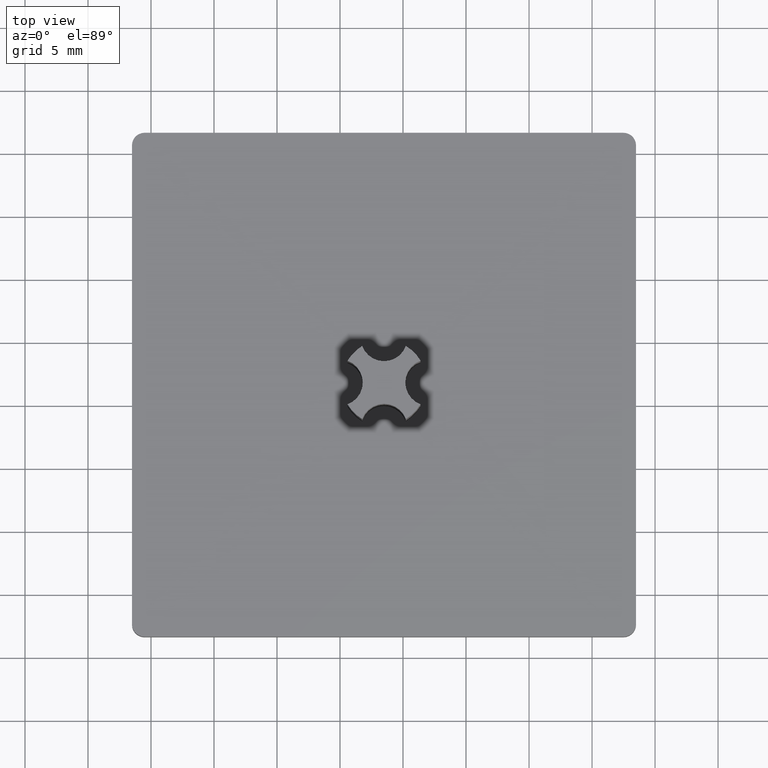
[diagram: clean part render]
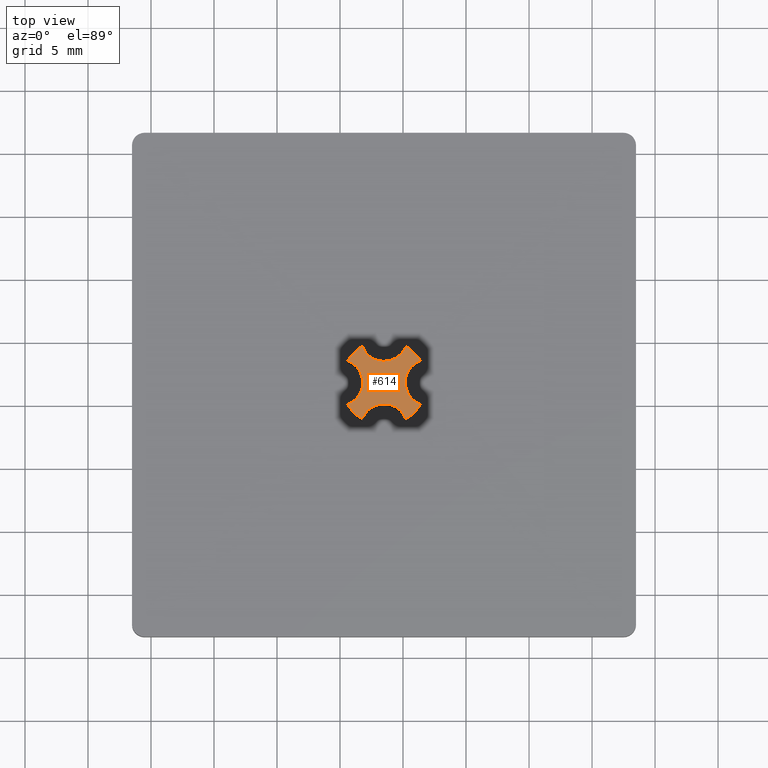
[diagram: same view with one face highlighted and labeled with its STEP entity id]
A machine part, top view. The second image highlights one B-rep face of the part: STEP entity #614.
In plain terms, the highlighted planar face has unit normal (0, 0, 1).
Its self-contained STEP definition (entity closure, byte-faithful):
#7=CARTESIAN_POINT('',(-24.822161560216632,-8.350442477875610,13.0));
#8=VERTEX_POINT('',#7);
#9=CARTESIAN_POINT('',(-23.614734513273326,-6.615622602499498,13.0));
#10=VERTEX_POINT('',#9);
#11=CARTESIAN_POINT('',(-22.972161560216630,-8.350442477875610,13.0));
#12=DIRECTION('',(0.0,0.0,-1.0));
#13=DIRECTION('',(0.0,1.0,0.0));
#14=AXIS2_PLACEMENT_3D('',#11,#12,#13);
#15=CIRCLE('',#14,1.850000000000001);
#16=EDGE_CURVE('',#8,#10,#15,.T.);
#411=CARTESIAN_POINT('',(-24.774914637897208,-5.455442477875609,13.0));
#412=VERTEX_POINT('',#411);
#419=CARTESIAN_POINT('',(-26.509734513273326,-8.350442477875610,13.0));
#420=DIRECTION('',(0.0,0.0,1.0));
#421=DIRECTION('',(0.0,1.0,0.0));
#422=AXIS2_PLACEMENT_3D('',#419,#420,#421);
#423=CIRCLE('',#422,3.374999999999998);
#424=EDGE_CURVE('',#10,#412,#423,.T.);
#436=CARTESIAN_POINT('',(-28.244554388649441,-5.455442477875613,13.0));
#437=VERTEX_POINT('',#436);
#444=CARTESIAN_POINT('',(-26.509734513273326,-4.812869524818913,13.0));
#445=DIRECTION('',(0.0,0.0,-1.0));
#446=DIRECTION('',(0.0,1.0,0.0));
#447=AXIS2_PLACEMENT_3D('',#444,#445,#446);
#448=CIRCLE('',#447,1.850000000000000);
#449=EDGE_CURVE('',#412,#437,#448,.T.);
#461=CARTESIAN_POINT('',(-29.404734522686766,-6.615622618208302,13.0));
#462=VERTEX_POINT('',#461);
#469=CARTESIAN_POINT('',(-26.509734513273326,-8.350442477875610,13.0));
#470=DIRECTION('',(0.0,0.0,1.0));
#471=DIRECTION('',(0.0,1.0,0.0));
#472=AXIS2_PLACEMENT_3D('',#469,#470,#471);
#473=CIRCLE('',#472,3.374999999999999);
#474=EDGE_CURVE('',#437,#462,#473,.T.);
#486=CARTESIAN_POINT('',(-29.404734522686766,-10.085262337542920,13.0));
#487=VERTEX_POINT('',#486);
#494=CARTESIAN_POINT('',(-30.047307518154145,-8.350442477875610,13.0));
#495=DIRECTION('',(0.0,0.0,-1.0));
#496=DIRECTION('',(0.0,1.0,0.0));
#497=AXIS2_PLACEMENT_3D('',#494,#495,#496);
#498=CIRCLE('',#497,1.850000000000003);
#499=EDGE_CURVE('',#462,#487,#498,.T.);
#511=CARTESIAN_POINT('',(-28.244554388649441,-11.245442477875613,13.0));
#512=VERTEX_POINT('',#511);
#519=CARTESIAN_POINT('',(-26.509734513273326,-8.350442477875610,13.0));
#520=DIRECTION('',(0.0,0.0,1.0));
#521=DIRECTION('',(0.0,1.0,0.0));
#522=AXIS2_PLACEMENT_3D('',#519,#520,#521);
#523=CIRCLE('',#522,3.375000000000001);
#524=EDGE_CURVE('',#487,#512,#523,.T.);
#536=CARTESIAN_POINT('',(-24.774914637897208,-11.245442477875608,13.0));
#537=VERTEX_POINT('',#536);
#544=CARTESIAN_POINT('',(-26.509734513273326,-11.888015430932322,13.0));
#545=DIRECTION('',(0.0,0.0,-1.0));
#546=DIRECTION('',(0.0,-1.0,0.0));
#547=AXIS2_PLACEMENT_3D('',#544,#545,#546);
#548=CIRCLE('',#547,1.850000000000004);
#549=EDGE_CURVE('',#512,#537,#548,.T.);
#561=CARTESIAN_POINT('',(-23.614734513273326,-10.085262353251728,13.0));
#562=VERTEX_POINT('',#561);
#569=CARTESIAN_POINT('',(-26.509734513273326,-8.350442477875610,13.0));
#570=DIRECTION('',(0.0,0.0,1.0));
#571=DIRECTION('',(0.0,1.0,0.0));
#572=AXIS2_PLACEMENT_3D('',#569,#570,#571);
#573=CIRCLE('',#572,3.374999999999999);
#574=EDGE_CURVE('',#537,#562,#573,.T.);
#586=CARTESIAN_POINT('',(-22.972161560216630,-8.350442477875610,13.0));
#587=DIRECTION('',(0.0,0.0,-1.0));
#588=DIRECTION('',(0.0,1.0,0.0));
#589=AXIS2_PLACEMENT_3D('',#586,#587,#588);
#590=CIRCLE('',#589,1.850000000000001);
#591=EDGE_CURVE('',#562,#8,#590,.T.);
#598=CARTESIAN_POINT('',(-29.694234523157448,-11.534942477875614,13.0));
#599=DIRECTION('',(0.0,0.0,1.0));
#600=DIRECTION('',(1.0,0.0,0.0));
#601=AXIS2_PLACEMENT_3D('',#598,#599,#600);
#602=PLANE('',#601);
#603=ORIENTED_EDGE('',*,*,#424,.T.);
#604=ORIENTED_EDGE('',*,*,#449,.T.);
#605=ORIENTED_EDGE('',*,*,#474,.T.);
#606=ORIENTED_EDGE('',*,*,#499,.T.);
#607=ORIENTED_EDGE('',*,*,#524,.T.);
#608=ORIENTED_EDGE('',*,*,#549,.T.);
#609=ORIENTED_EDGE('',*,*,#574,.T.);
#610=ORIENTED_EDGE('',*,*,#591,.T.);
#611=ORIENTED_EDGE('',*,*,#16,.T.);
#612=EDGE_LOOP('',(#603,#604,#605,#606,#607,#608,#609,#610,#611));
#613=FACE_OUTER_BOUND('',#612,.T.);
#614=ADVANCED_FACE('',(#613),#602,.T.);